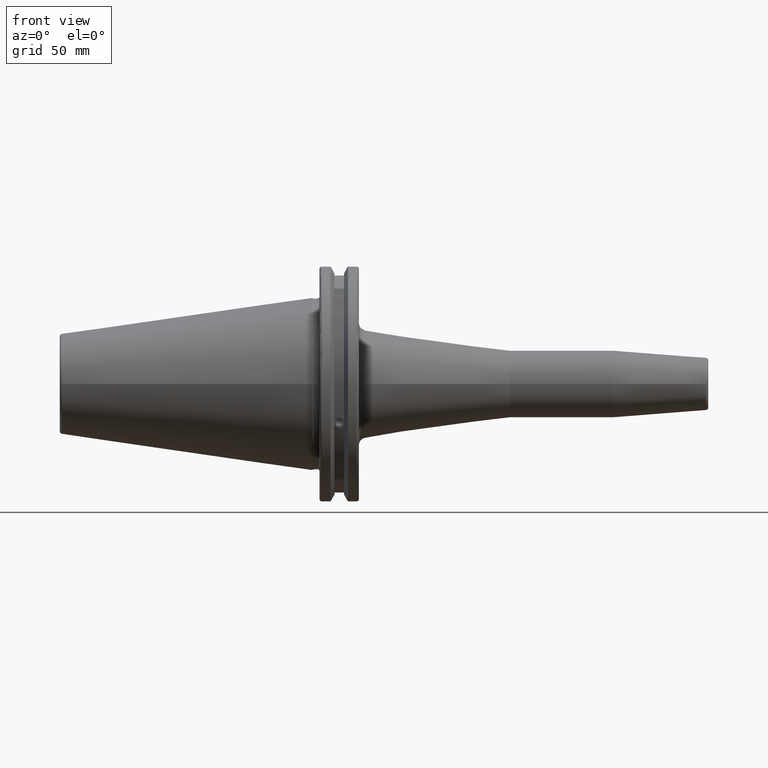
[diagram: clean part render]
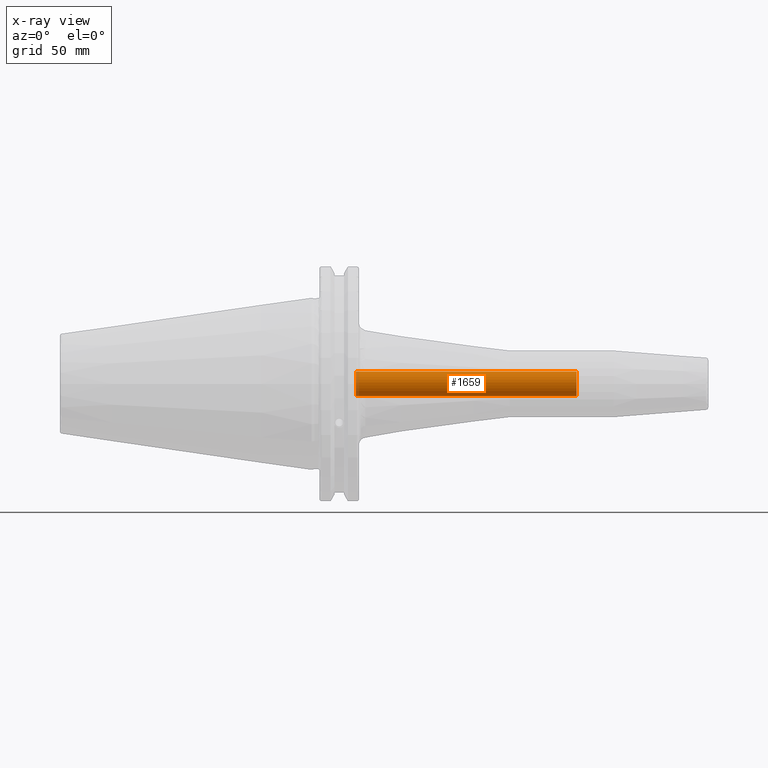
[diagram: x-ray — body ghosted, one internal face saturated and labeled with its STEP entity id]
A machine part, front view, then the same camera in x-ray: the body is ghosted and one INTERNAL B-rep face — a face not visible from any outside direction — is saturated and labeled: STEP entity #1659.
In plain terms, the highlighted cylindrical surface (bore or boss wall) has radius 5 mm, axis along (-1, 0, 0).
Its self-contained STEP definition (entity closure, byte-faithful):
#72=CYLINDRICAL_SURFACE('',#1795,5.);
#113=LINE('',#2550,#208);
#208=VECTOR('',#2053,5.);
#370=FACE_OUTER_BOUND('',#461,.T.);
#461=EDGE_LOOP('',(#1178,#1179,#1180,#1181,#1182));
#582=CIRCLE('',#1791,5.);
#585=CIRCLE('',#1794,5.);
#586=CIRCLE('',#1796,5.);
#700=VERTEX_POINT('',#2538);
#701=VERTEX_POINT('',#2539);
#704=VERTEX_POINT('',#2548);
#891=EDGE_CURVE('',#700,#701,#582,.T.);
#895=EDGE_CURVE('',#701,#700,#585,.T.);
#896=EDGE_CURVE('',#704,#704,#586,.T.);
#897=EDGE_CURVE('',#704,#701,#113,.T.);
#1178=ORIENTED_EDGE('',*,*,#896,.F.);
#1179=ORIENTED_EDGE('',*,*,#897,.T.);
#1180=ORIENTED_EDGE('',*,*,#891,.F.);
#1181=ORIENTED_EDGE('',*,*,#895,.F.);
#1182=ORIENTED_EDGE('',*,*,#897,.F.);
#1659=ADVANCED_FACE('',(#370),#72,.F.);
#1791=AXIS2_PLACEMENT_3D('',#2540,#2040,#2041);
#1794=AXIS2_PLACEMENT_3D('',#2546,#2047,#2048);
#1795=AXIS2_PLACEMENT_3D('',#2547,#2049,#2050);
#1796=AXIS2_PLACEMENT_3D('',#2549,#2051,#2052);
#2040=DIRECTION('center_axis',(-1.,0.,0.));
#2041=DIRECTION('ref_axis',(0.,0.,1.));
#2047=DIRECTION('center_axis',(-1.,0.,0.));
#2048=DIRECTION('ref_axis',(0.,0.,1.));
#2049=DIRECTION('center_axis',(-1.,0.,0.));
#2050=DIRECTION('ref_axis',(0.,0.,1.));
#2051=DIRECTION('center_axis',(1.,0.,0.));
#2052=DIRECTION('ref_axis',(0.,0.,1.));
#2053=DIRECTION('',(1.,0.,0.));
#2538=CARTESIAN_POINT('',(106.9,0.,5.));
#2539=CARTESIAN_POINT('',(106.9,-6.12323399573676E-16,-5.));
#2540=CARTESIAN_POINT('Origin',(106.9,0.,0.));
#2546=CARTESIAN_POINT('Origin',(106.9,0.,0.));
#2547=CARTESIAN_POINT('Origin',(2.65000000000001,0.,0.));
#2548=CARTESIAN_POINT('',(17.8549485594085,6.12323399573677E-16,-5.));
#2549=CARTESIAN_POINT('Origin',(17.8549485594085,0.,0.));
#2550=CARTESIAN_POINT('',(2.65000000000001,-6.12323399573677E-16,-5.));